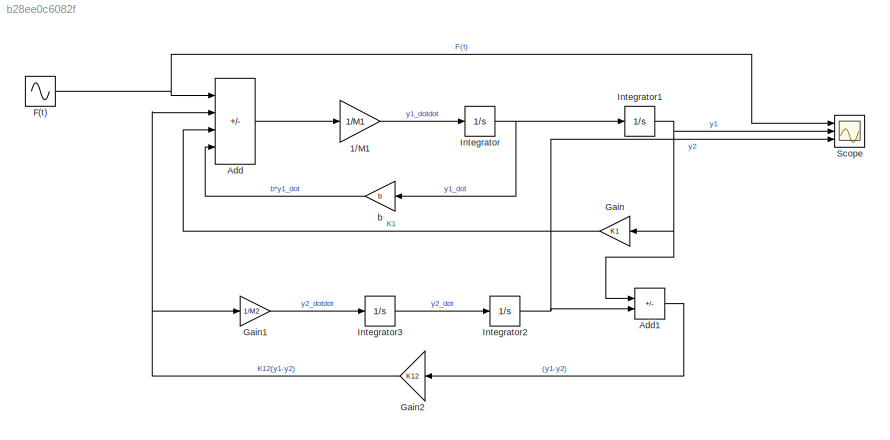
MODEL slx_b28ee0c6082f
KIND model
CONFIG AbsTol = auto
CONFIG EnableMultiTasking = off
CONFIG FixedStep = auto
CONFIG MaxStep = 0.01
CONFIG MinStep = auto
CONFIG RelTol = 1e-3
CONFIG SampleTimeConstraint = Unconstrained
CONFIG SolverName = VariableStepAuto
CONFIG StartTime = 0.0
CONFIG StopTime = 100
WORKSPACE source: mxarray member
WORKSPACE K12 = 5000
WORKSPACE M2 = 50
BLOCK [Gain] 1//M1
  Gain = 1/M1
BLOCK [Sum] Add
  IconShape = rectangular
  Inputs = +---
  Ports = [4, 1]
BLOCK [Sum] Add1
  IconShape = rectangular
  Inputs = +-
  Ports = [2, 1]
BLOCK [Sin] F(t)
  Amplitude = 2
  Frequency = 10
  Ports = [0, 1]
  SampleTime = 0
BLOCK [Gain] Gain
  Gain = K1
BLOCK [Gain] Gain1
  Gain = 1/M2
BLOCK [Gain] Gain2
  Gain = K12
BLOCK [Integrator] Integrator
  Ports = [1, 1]
BLOCK [Integrator] Integrator1
  Ports = [1, 1]
BLOCK [Integrator] Integrator2
  Ports = [1, 1]
BLOCK [Integrator] Integrator3
  Ports = [1, 1]
BLOCK [Scope] Scope
  Floating = off
  NumInputPorts = 3
  Ports = [3]
  ScopeSpecificationString = Simulink.scopes.TimeScopeBlockCfg('CurrentConfiguration', extmgr.ConfigurationSet(extmgr.Configuration('Core','General UI',true),extmgr.Configuration('Core','Source UI',true),extmgr.Configuration('Sources','WiredSimulink',true),extmgr.Configuration('Visuals','Time Domain',true,'SerializedDisplays',{struct('MinYLimReal','-2.5','MaxYLimReal','2.5','YLabelReal','','MinYLimMag','0.00000','MaxYLimMag',...<+2757ch>
BLOCK [Gain] b
  Gain = b
  NameLocation = top
LINE 1//M1:1 -> Integrator:1
LINE Add1:1 -> Gain2:1
LINE Add:1 -> 1//M1:1
NET F(t):1 -> Add:1, Scope:1
LINE Gain1:1 -> Integrator3:1
NET Gain2:1 -> Add:2, Gain1:1
LINE Gain:1 -> Add:3
NET Integrator1:1 -> Add1:1, Gain:1, Scope:2
NET Integrator2:1 -> Add1:2, Scope:3
LINE Integrator3:1 -> Integrator2:1
NET Integrator:1 -> Integrator1:1, b:1
LINE b:1 -> Add:4
note: NET lines group one-source signal fan-out (src -> all destinations, sorted); 1:1 wires keep LINE
